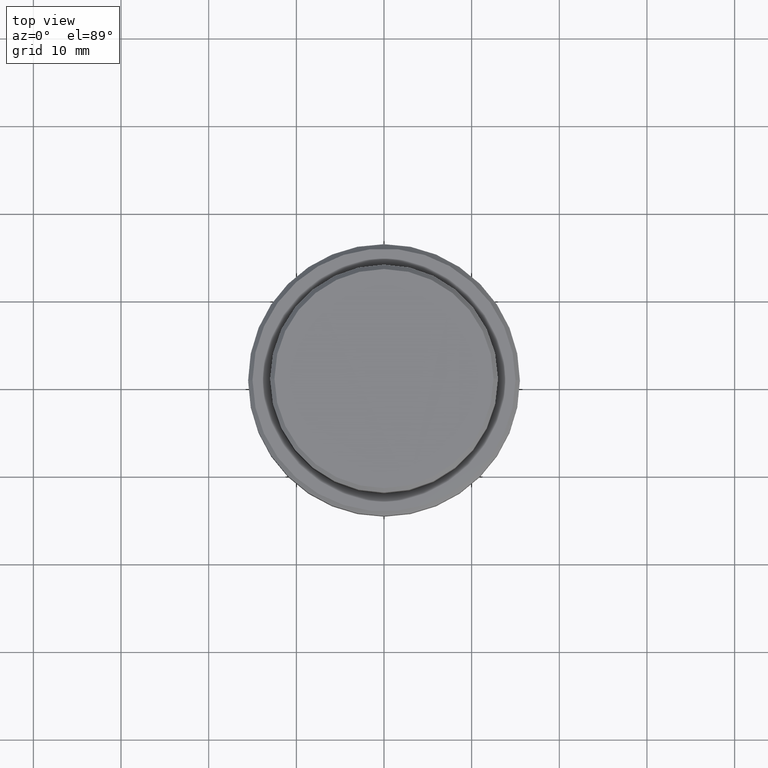
[diagram: clean part render]
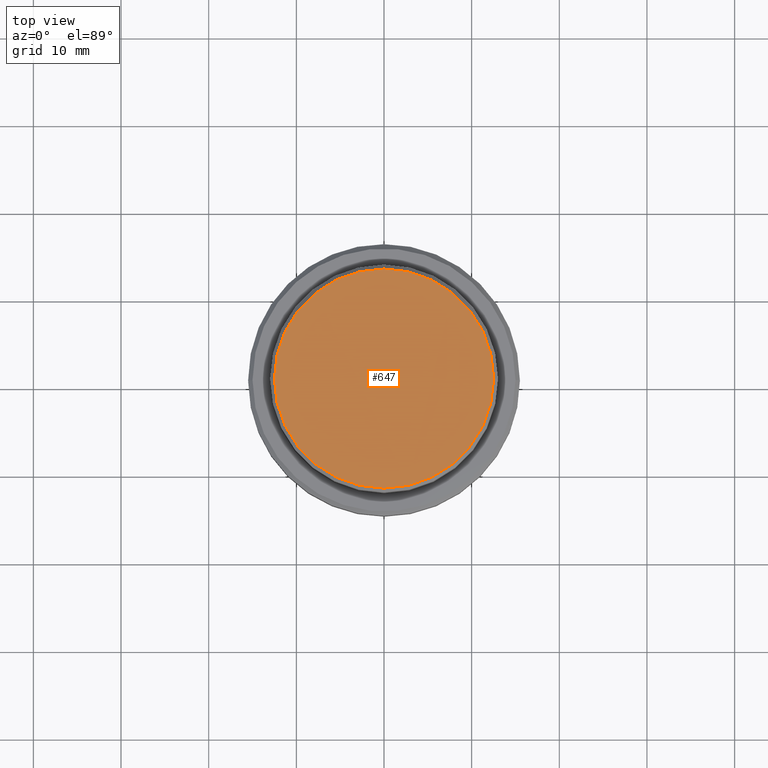
[diagram: same view with one face highlighted and labeled with its STEP entity id]
A machine part, top view. The second image highlights one B-rep face of the part: STEP entity #647.
In plain terms, the highlighted planar face has unit normal (0, -0, 1).
Its self-contained STEP definition (entity closure, byte-faithful):
#4 = PLANE ( 'NONE',  #305 ) ;
#36 = VERTEX_POINT ( 'NONE', #129 ) ;
#104 = DIRECTION ( 'NONE',  ( 0.000000000000000000, -0.000000000000000000, 1.000000000000000000 ) ) ;
#129 = CARTESIAN_POINT ( 'NONE',  ( 12.50000000000001243, 1.561424668912876097E-15, 0.000000000000000000 ) ) ;
#131 = DIRECTION ( 'NONE',  ( -0.000000000000000000, -0.000000000000000000, 1.000000000000000000 ) ) ;
#173 = CIRCLE ( 'NONE', #191, 12.50000000000001243 ) ;
#191 = AXIS2_PLACEMENT_3D ( 'NONE', #802, #363, #914 ) ;
#305 = AXIS2_PLACEMENT_3D ( 'NONE', #450, #104, #884 ) ;
#363 = DIRECTION ( 'NONE',  ( -0.000000000000000000, -0.000000000000000000, 1.000000000000000000 ) ) ;
#450 = CARTESIAN_POINT ( 'NONE',  ( 0.000000000000000000, 0.000000000000000000, 0.000000000000000000 ) ) ;
#455 = ORIENTED_EDGE ( 'NONE', *, *, #658, .T. ) ;
#554 = AXIS2_PLACEMENT_3D ( 'NONE', #662, #131, #648 ) ;
#647 = ADVANCED_FACE ( 'NONE', ( #656 ), #4, .T. ) ;
#648 = DIRECTION ( 'NONE',  ( 1.000000000000000000, 0.000000000000000000, 0.000000000000000000 ) ) ;
#653 = VERTEX_POINT ( 'NONE', #994 ) ;
#656 = FACE_OUTER_BOUND ( 'NONE', #753, .T. ) ;
#658 = EDGE_CURVE ( 'NONE', #653, #36, #1063, .T. ) ;
#662 = CARTESIAN_POINT ( 'NONE',  ( 0.000000000000000000, 0.000000000000000000, 0.000000000000000000 ) ) ;
#753 = EDGE_LOOP ( 'NONE', ( #455, #1329 ) ) ;
#802 = CARTESIAN_POINT ( 'NONE',  ( 0.000000000000000000, 0.000000000000000000, 0.000000000000000000 ) ) ;
#884 = DIRECTION ( 'NONE',  ( 1.000000000000000000, 0.000000000000000000, 0.000000000000000000 ) ) ;
#914 = DIRECTION ( 'NONE',  ( 1.000000000000000000, 0.000000000000000000, 0.000000000000000000 ) ) ;
#994 = CARTESIAN_POINT ( 'NONE',  ( -12.50000000000001243, 0.000000000000000000, 0.000000000000000000 ) ) ;
#1063 = CIRCLE ( 'NONE', #554, 12.50000000000001243 ) ;
#1189 = EDGE_CURVE ( 'NONE', #36, #653, #173, .T. ) ;
#1329 = ORIENTED_EDGE ( 'NONE', *, *, #1189, .T. ) ;